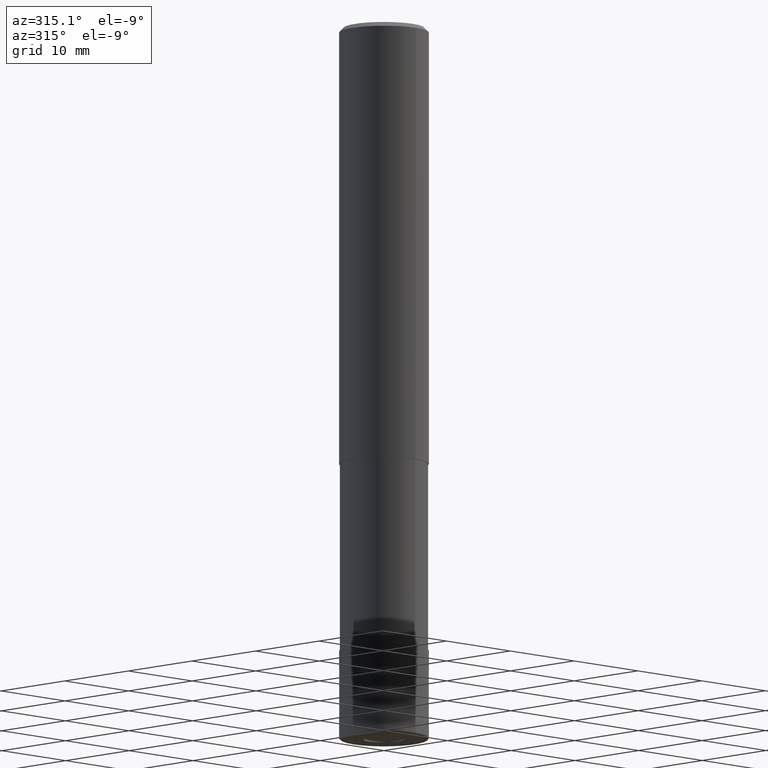
[diagram: clean part render]
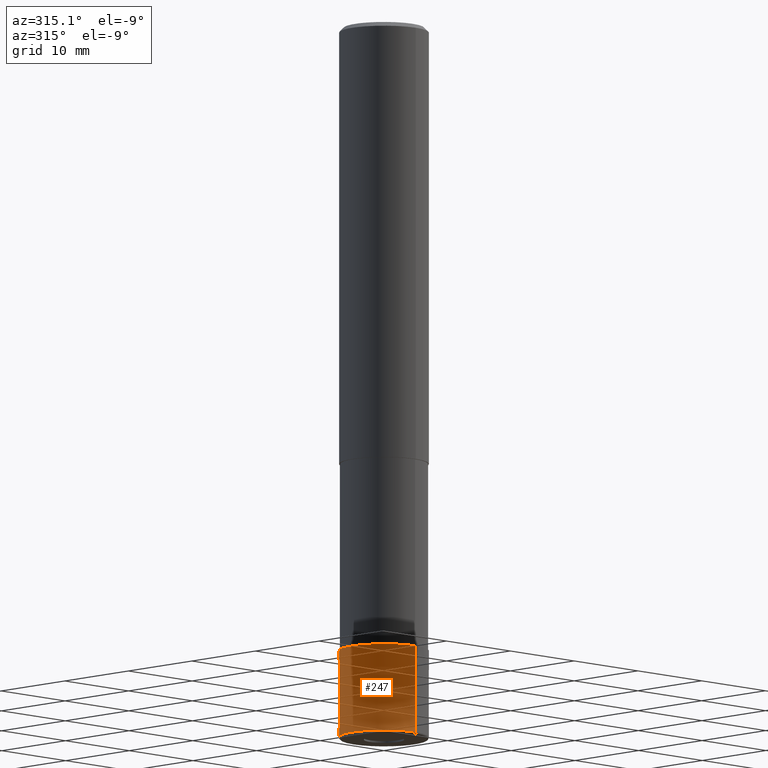
[diagram: same view with one face highlighted and labeled with its STEP entity id]
A machine part, auxiliary view. The second image highlights one B-rep face of the part: STEP entity #247.
In plain terms, the highlighted conical surface has half-angle 0.001 deg.
Its self-contained STEP definition (entity closure, byte-faithful):
#171=VERTEX_POINT('',#371);
#179=EDGE_CURVE('',#279,#213,#380,.T.);
#213=VERTEX_POINT('',#420);
#225=EDGE_CURVE('',#233,#279,#433,.T.);
#231=EDGE_CURVE('',#171,#233,#439,.T.);
#233=VERTEX_POINT('',#441);
#247=ADVANCED_FACE('',(#456),#457,.T.);
#279=VERTEX_POINT('',#490);
#283=EDGE_CURVE('',#171,#213,#494,.T.);
#371=CARTESIAN_POINT('',(6.12303176911189E-016,-5.0,-79.7));
#380=LINE('',#599,#600);
#420=CARTESIAN_POINT('',(0.0,5.0,-79.7));
#433=CIRCLE('',#666,4.9999);
#439=LINE('',#675,#676);
#441=CARTESIAN_POINT('',(6.1229093084765E-016,-4.9999,-70.0));
#456=FACE_OUTER_BOUND('',#695,.T.);
#457=CONICAL_SURFACE('',#696,4.99995,1.03092783501262E-005);
#490=CARTESIAN_POINT('',(0.0,4.9999,-70.0));
#494=CIRCLE('',#745,5.0);
#599=CARTESIAN_POINT('',(-6.1229705387942E-016,4.99995,-74.85));
#600=VECTOR('',#853,1.0);
#666=AXIS2_PLACEMENT_3D('',#921,#922,#923);
#675=CARTESIAN_POINT('',(6.1229705387942E-016,-4.99995,-74.85));
#676=VECTOR('',#930,1.0);
#695=EDGE_LOOP('',(#950,#951,#952,#953));
#696=AXIS2_PLACEMENT_3D('',#954,#955,#956);
#745=AXIS2_PLACEMENT_3D('',#992,#993,#994);
#853=DIRECTION('',(-1.26248077706644E-021,1.03092783499436E-005,-0.999999999946859));
#921=CARTESIAN_POINT('',(0.0,0.0,-70.0));
#922=DIRECTION('',(0.0,0.0,-1.0));
#923=DIRECTION('',(0.0,1.0,0.0));
#930=DIRECTION('',(-1.26248077706644E-021,1.03092783499436E-005,0.999999999946859));
#950=ORIENTED_EDGE('',*,*,#179,.T.);
#951=ORIENTED_EDGE('',*,*,#283,.F.);
#952=ORIENTED_EDGE('',*,*,#231,.T.);
#953=ORIENTED_EDGE('',*,*,#225,.T.);
#954=CARTESIAN_POINT('',(0.0,0.0,-74.85));
#955=DIRECTION('',(0.0,-0.0,-1.0));
#956=DIRECTION('',(0.0,1.0,0.0));
#992=CARTESIAN_POINT('',(0.0,0.0,-79.7));
#993=DIRECTION('',(0.0,0.0,-1.0));
#994=DIRECTION('',(0.0,1.0,0.0));